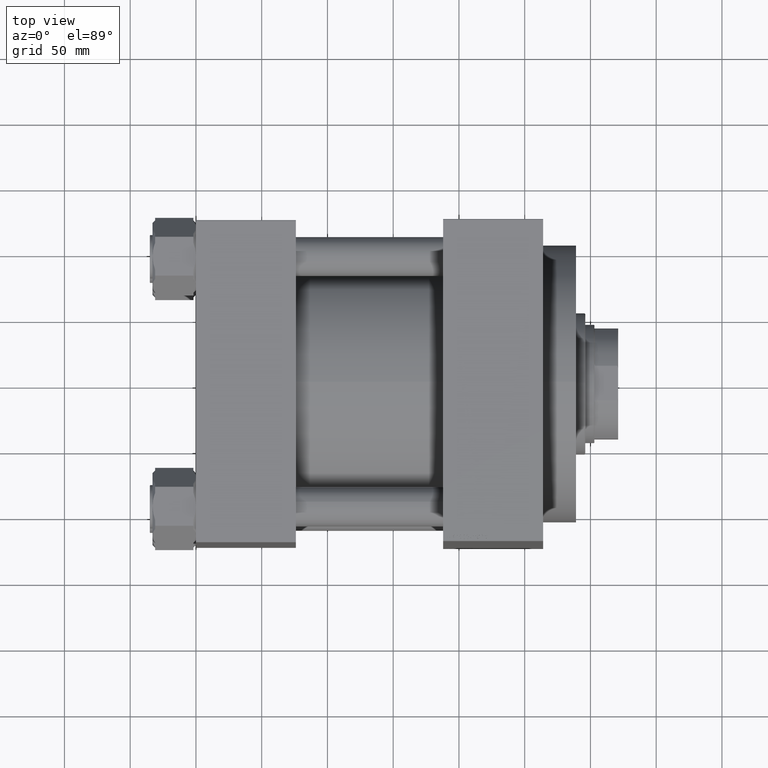
[diagram: clean part render]
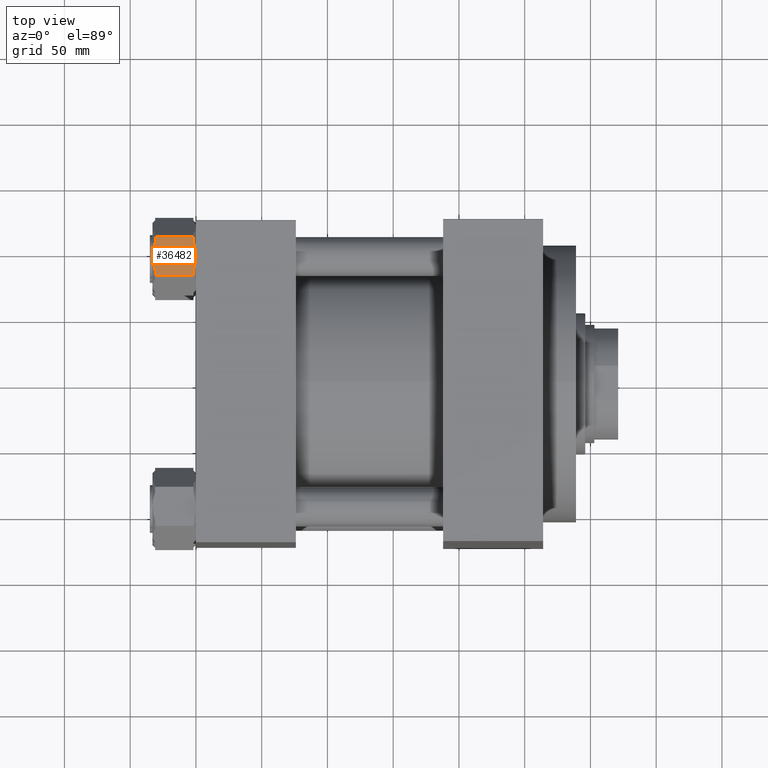
[diagram: same view with one face highlighted and labeled with its STEP entity id]
A machine part, top view. The second image highlights one B-rep face of the part: STEP entity #36482.
In plain terms, the highlighted planar face has unit normal (0, -0, -1).
Its self-contained STEP definition (entity closure, byte-faithful):
#221 = ORIENTED_EDGE ( 'NONE', *, *, #18795, .F. ) ;
#376 = CARTESIAN_POINT ( 'NONE',  ( 3.004629197474319246E-15, -25.65167246009509228, 0.000000000000000000 ) ) ;
#1054 = ORIENTED_EDGE ( 'NONE', *, *, #45671, .F. ) ;
#1149 = CARTESIAN_POINT ( 'NONE',  ( 3.538636345949333517, -25.65167246009507807, -0.2281683442147109386 ) ) ;
#1792 = LINE ( 'NONE', #38639, #7291 ) ;
#1830 = CARTESIAN_POINT ( 'NONE',  ( -14.81000000000000583, -25.65167246009507807, -31.00000000000000000 ) ) ;
#2572 = VERTEX_POINT ( 'NONE', #4860 ) ;
#3685 = VERTEX_POINT ( 'NONE', #19610 ) ;
#3705 = EDGE_CURVE ( 'NONE', #32879, #2572, #13517, .T. ) ;
#4183 = ORIENTED_EDGE ( 'NONE', *, *, #34738, .F. ) ;
#4746 = CARTESIAN_POINT ( 'NONE',  ( 14.81000000000000760, -25.65167246009507451, -31.00000000000000000 ) ) ;
#4751 = CARTESIAN_POINT ( 'NONE',  ( 1.778491183643254647, -25.65167246009507807, -0.05774617287276616329 ) ) ;
#4813 = VERTEX_POINT ( 'NONE', #13050 ) ;
#4860 = CARTESIAN_POINT ( 'NONE',  ( 14.81000000000000760, -25.65167246009507451, -2.000000000000001776 ) ) ;
#4992 = CARTESIAN_POINT ( 'NONE',  ( -4.407316998488259863, -25.65167246009508162, -32.63775935819370488 ) ) ;
#5016 = DIRECTION ( 'NONE',  ( -0.000000000000000000, -0.000000000000000000, 1.000000000000000000 ) ) ;
#5148 = CARTESIAN_POINT ( 'NONE',  ( 8.647222686001285297, -25.65167246009507096, -31.58462314271100979 ) ) ;
#5459 = CARTESIAN_POINT ( 'NONE',  ( 10.32505156599140683, -25.65167246009507451, -2.000000000000000000 ) ) ;
#5460 = CARTESIAN_POINT ( 'NONE',  ( -0.4430237275646235484, -25.65167246009508517, -33.00000000000002842 ) ) ;
#5638 = DIRECTION ( 'NONE',  ( 1.000000000000000000, 1.171319024967458697E-16, -0.000000000000000000 ) ) ;
#5931 = CARTESIAN_POINT ( 'NONE',  ( -2.220425330063965141, -25.65167246009508517, -32.90778839293702163 ) ) ;
#6233 = DIRECTION ( 'NONE',  ( -1.171319024967458697E-16, 1.000000000000000000, 0.000000000000000000 ) ) ;
#7024 = DIRECTION ( 'NONE',  ( -1.000000000000000000, -1.171319024967458697E-16, 0.000000000000000000 ) ) ;
#7116 = CARTESIAN_POINT ( 'NONE',  ( -1.775396627771425262, -25.65167246009507451, 1.230870633041182272E-14 ) ) ;
#7143 = B_SPLINE_CURVE_WITH_KNOTS ( 'NONE', 3,
 ( #44672, #33368, #22038, #36505, #7362, #44440, #47578, #14817, #7116, #376 ),
 .UNSPECIFIED., .F., .F.,
 ( 4, 2, 2, 2, 4 ),
 ( 0.04182442407301416309, 0.04314391849774561194, 0.04446341292247706078, 0.04710240177193995154, 0.05238037947086573998 ),
 .UNSPECIFIED. ) ;
#7291 = VECTOR ( 'NONE', #5638, 1000.000000000000000 ) ;
#7362 = CARTESIAN_POINT ( 'NONE',  ( -8.224817531128843839, -25.65167246009508517, -1.283276907620148899 ) ) ;
#7876 = ORIENTED_EDGE ( 'NONE', *, *, #3705, .T. ) ;
#8398 = CARTESIAN_POINT ( 'NONE',  ( -14.81000000000000583, -25.65167246009507807, -33.00000000000000000 ) ) ;
#8591 = ORIENTED_EDGE ( 'NONE', *, *, #47412, .F. ) ;
#8767 = CARTESIAN_POINT ( 'NONE',  ( 9.489356881974149616, -25.65167246009507451, -31.30393777142522538 ) ) ;
#8843 = CARTESIAN_POINT ( 'NONE',  ( 8.669316105214891266, -25.65167246009508162, -1.381753344690851870 ) ) ;
#8844 = CARTESIAN_POINT ( 'NONE',  ( -0.8893174470413420796, -25.65167246009508162, -32.98842907433986227 ) ) ;
#10031 = B_SPLINE_CURVE_WITH_KNOTS ( 'NONE', 3,
 ( #16763, #5460, #8844, #23523, #5931, #20130, #4992, #30761, #16526, #38233 ),
 .UNSPECIFIED., .F., .F.,
 ( 4, 2, 2, 2, 4 ),
 ( 0.05238037947086573304, 0.05369742002259652452, 0.05501446057432730907, 0.05764854167778888511, 0.06291670388471203024 ),
 .UNSPECIFIED. ) ;
#10570 = DIRECTION ( 'NONE',  ( -1.000000000000000000, -1.171319024967458697E-16, 0.000000000000000000 ) ) ;
#10626 = VERTEX_POINT ( 'NONE', #1830 ) ;
#10669 = B_SPLINE_CURVE_WITH_KNOTS ( 'NONE', 3,
 ( #19901, #23041, #37753, #4751, #37992, #1149, #41836, #23758, #8843, #5459 ),
 .UNSPECIFIED., .F., .F.,
 ( 4, 2, 2, 2, 4 ),
 ( 0.05238037947086573998, 0.05369742002259652452, 0.05501446057432730907, 0.05764854167778887817, 0.06291670388471201636 ),
 .UNSPECIFIED. ) ;
#10692 = CARTESIAN_POINT ( 'NONE',  ( 14.81000000000000760, -25.65167246009507451, -2.000000000000001776 ) ) ;
#10899 = CARTESIAN_POINT ( 'NONE',  ( 6.953324275881639593, -25.65167246009507096, -32.08667077423702096 ) ) ;
#11595 = LINE ( 'NONE', #37366, #11684 ) ;
#11684 = VECTOR ( 'NONE', #7024, 1000.000000000000000 ) ;
#11808 = EDGE_CURVE ( 'NONE', #10626, #16319, #37070, .T. ) ;
#12937 = CARTESIAN_POINT ( 'NONE',  ( -14.81000000000000583, -25.65167246009507807, -2.000000000000001776 ) ) ;
#13050 = CARTESIAN_POINT ( 'NONE',  ( -10.32505156599139973, -25.65167246009507451, -2.000000000000000000 ) ) ;
#13168 = EDGE_CURVE ( 'NONE', #40449, #37573, #28759, .T. ) ;
#13517 = LINE ( 'NONE', #23464, #23288 ) ;
#14817 = CARTESIAN_POINT ( 'NONE',  ( -3.520663271550332318, -25.65167246009508162, -0.1856075818245811471 ) ) ;
#16283 = CARTESIAN_POINT ( 'NONE',  ( 10.32505156599140683, -25.65167246009507451, -2.000000000000000000 ) ) ;
#16313 = ORIENTED_EDGE ( 'NONE', *, *, #11808, .F. ) ;
#16319 = VERTEX_POINT ( 'NONE', #12937 ) ;
#16518 = DIRECTION ( 'NONE',  ( -1.000000000000000000, -1.171319024967458697E-16, 0.000000000000000000 ) ) ;
#16526 = CARTESIAN_POINT ( 'NONE',  ( -8.669316105214894819, -25.65167246009507807, -31.61824665530914302 ) ) ;
#16763 = CARTESIAN_POINT ( 'NONE',  ( 3.004629197474319246E-15, -25.65167246009509228, -33.00000000000000000 ) ) ;
#17292 = CARTESIAN_POINT ( 'NONE',  ( 14.81000000000000760, -25.65167246009507451, -33.00000000000000000 ) ) ;
#18110 = CARTESIAN_POINT ( 'NONE',  ( 3.520663271550343865, -25.65167246009507096, -32.81439241817540875 ) ) ;
#18350 = CARTESIAN_POINT ( 'NONE',  ( 6.099955639268620722, -25.65167246009507807, -32.29814942570216374 ) ) ;
#18795 = EDGE_CURVE ( 'NONE', #32879, #40449, #19427, .T. ) ;
#18910 = EDGE_CURVE ( 'NONE', #4813, #25623, #7143, .T. ) ;
#19427 = LINE ( 'NONE', #4746, #42041 ) ;
#19610 = CARTESIAN_POINT ( 'NONE',  ( -10.32505156599142104, -25.65167246009507451, -31.00000000000000000 ) ) ;
#19829 = CARTESIAN_POINT ( 'NONE',  ( 8.224817531128861603, -25.65167246009507807, -31.71672309237984066 ) ) ;
#19838 = CARTESIAN_POINT ( 'NONE',  ( 10.32505156599142815, -25.65167246009507451, -31.00000000000000000 ) ) ;
#19901 = CARTESIAN_POINT ( 'NONE',  ( 3.004629197474319246E-15, -25.65167246009509228, 0.000000000000000000 ) ) ;
#20130 = CARTESIAN_POINT ( 'NONE',  ( -3.538636345949336182, -25.65167246009508162, -32.77183165578530577 ) ) ;
#22038 = CARTESIAN_POINT ( 'NONE',  ( -9.489356881974121194, -25.65167246009507451, -1.696062228574763742 ) ) ;
#22686 = ORIENTED_EDGE ( 'NONE', *, *, #13168, .F. ) ;
#23041 = CARTESIAN_POINT ( 'NONE',  ( 0.4430237275646299322, -25.65167246009507807, 1.209111297773939011E-14 ) ) ;
#23288 = VECTOR ( 'NONE', #46502, 1000.000000000000000 ) ;
#23464 = CARTESIAN_POINT ( 'NONE',  ( 14.81000000000000760, -25.65167246009507451, -33.00000000000000000 ) ) ;
#23523 = CARTESIAN_POINT ( 'NONE',  ( -1.778491183643247098, -25.65167246009508162, -32.94225382712722450 ) ) ;
#23758 = CARTESIAN_POINT ( 'NONE',  ( 6.986203245587496724, -25.65167246009508162, -0.8809313092508250786 ) ) ;
#24254 = VECTOR ( 'NONE', #32850, 1000.000000000000000 ) ;
#25587 = CARTESIAN_POINT ( 'NONE',  ( 1.775396627771432811, -25.65167246009507096, -33.00000000000000711 ) ) ;
#25623 = VERTEX_POINT ( 'NONE', #36039 ) ;
#27069 = CARTESIAN_POINT ( 'NONE',  ( 10.32505156599142815, -25.65167246009507451, -31.00000000000000000 ) ) ;
#27174 = ORIENTED_EDGE ( 'NONE', *, *, #18910, .F. ) ;
#28759 = B_SPLINE_CURVE_WITH_KNOTS ( 'NONE', 3,
 ( #27069, #41758, #8767, #5148, #19829, #10899, #18350, #18110, #25587, #46543 ),
 .UNSPECIFIED., .F., .F.,
 ( 4, 2, 2, 2, 4 ),
 ( 0.04182442407301414228, 0.04314391849774559112, 0.04446341292247704691, 0.04710240177193993766, 0.05238037947086573304 ),
 .UNSPECIFIED. ) ;
#30761 = CARTESIAN_POINT ( 'NONE',  ( -6.986203245587493171, -25.65167246009507451, -32.11906869074917381 ) ) ;
#32671 = CARTESIAN_POINT ( 'NONE',  ( 3.004629197474319246E-15, -25.65167246009509228, -33.00000000000000000 ) ) ;
#32850 = DIRECTION ( 'NONE',  ( 1.000000000000000000, 1.171319024967458697E-16, -0.000000000000000000 ) ) ;
#32876 = ORIENTED_EDGE ( 'NONE', *, *, #41325, .F. ) ;
#32879 = VERTEX_POINT ( 'NONE', #39565 ) ;
#33368 = CARTESIAN_POINT ( 'NONE',  ( -9.909542374435234890, -25.65167246009508162, -1.844850114033720345 ) ) ;
#33414 = EDGE_LOOP ( 'NONE', ( #221, #7876, #8591, #43036, #27174, #32876, #16313, #4183, #1054, #22686 ) ) ;
#34738 = EDGE_CURVE ( 'NONE', #3685, #10626, #11595, .T. ) ;
#35456 = AXIS2_PLACEMENT_3D ( 'NONE', #17292, #6233, #10570 ) ;
#35623 = FACE_OUTER_BOUND ( 'NONE', #33414, .T. ) ;
#36039 = CARTESIAN_POINT ( 'NONE',  ( 3.004629197474319246E-15, -25.65167246009509228, 0.000000000000000000 ) ) ;
#36482 = ADVANCED_FACE ( 'NONE', ( #35623 ), #47657, .F. ) ;
#36505 = CARTESIAN_POINT ( 'NONE',  ( -8.647222686001263980, -25.65167246009507807, -1.415376857288984436 ) ) ;
#37070 = LINE ( 'NONE', #8398, #38146 ) ;
#37366 = CARTESIAN_POINT ( 'NONE',  ( 14.81000000000000760, -25.65167246009507451, -31.00000000000000000 ) ) ;
#37573 = VERTEX_POINT ( 'NONE', #32671 ) ;
#37753 = CARTESIAN_POINT ( 'NONE',  ( 0.8893174470413506283, -25.65167246009507451, -0.01157092566015176412 ) ) ;
#37992 = CARTESIAN_POINT ( 'NONE',  ( 2.220425330063965585, -25.65167246009507807, -0.09221160706299975918 ) ) ;
#38146 = VECTOR ( 'NONE', #5016, 1000.000000000000000 ) ;
#38233 = CARTESIAN_POINT ( 'NONE',  ( -10.32505156599142104, -25.65167246009507451, -31.00000000000000000 ) ) ;
#38639 = CARTESIAN_POINT ( 'NONE',  ( 14.81000000000000760, -25.65167246009507451, -2.000000000000001776 ) ) ;
#39565 = CARTESIAN_POINT ( 'NONE',  ( 14.81000000000000760, -25.65167246009507451, -31.00000000000000000 ) ) ;
#40073 = LINE ( 'NONE', #10692, #24254 ) ;
#40449 = VERTEX_POINT ( 'NONE', #19838 ) ;
#40902 = EDGE_CURVE ( 'NONE', #25623, #44771, #10669, .T. ) ;
#41325 = EDGE_CURVE ( 'NONE', #16319, #4813, #1792, .T. ) ;
#41758 = CARTESIAN_POINT ( 'NONE',  ( 9.909542374435263312, -25.65167246009507807, -31.15514988596627788 ) ) ;
#41836 = CARTESIAN_POINT ( 'NONE',  ( 4.407316998488265192, -25.65167246009507807, -0.3622406418062982247 ) ) ;
#42041 = VECTOR ( 'NONE', #16518, 1000.000000000000000 ) ;
#43036 = ORIENTED_EDGE ( 'NONE', *, *, #40902, .F. ) ;
#44440 = CARTESIAN_POINT ( 'NONE',  ( -6.953324275881620053, -25.65167246009508162, -0.9133292257629657129 ) ) ;
#44672 = CARTESIAN_POINT ( 'NONE',  ( -10.32505156599139973, -25.65167246009507451, -2.000000000000000000 ) ) ;
#44771 = VERTEX_POINT ( 'NONE', #16283 ) ;
#45671 = EDGE_CURVE ( 'NONE', #37573, #3685, #10031, .T. ) ;
#46502 = DIRECTION ( 'NONE',  ( -0.000000000000000000, -0.000000000000000000, 1.000000000000000000 ) ) ;
#46543 = CARTESIAN_POINT ( 'NONE',  ( 3.004629197474319246E-15, -25.65167246009509228, -33.00000000000000000 ) ) ;
#47412 = EDGE_CURVE ( 'NONE', #44771, #2572, #40073, .T. ) ;
#47578 = CARTESIAN_POINT ( 'NONE',  ( -6.099955639268604735, -25.65167246009508162, -0.7018505742978484729 ) ) ;
#47657 = PLANE ( 'NONE',  #35456 ) ;